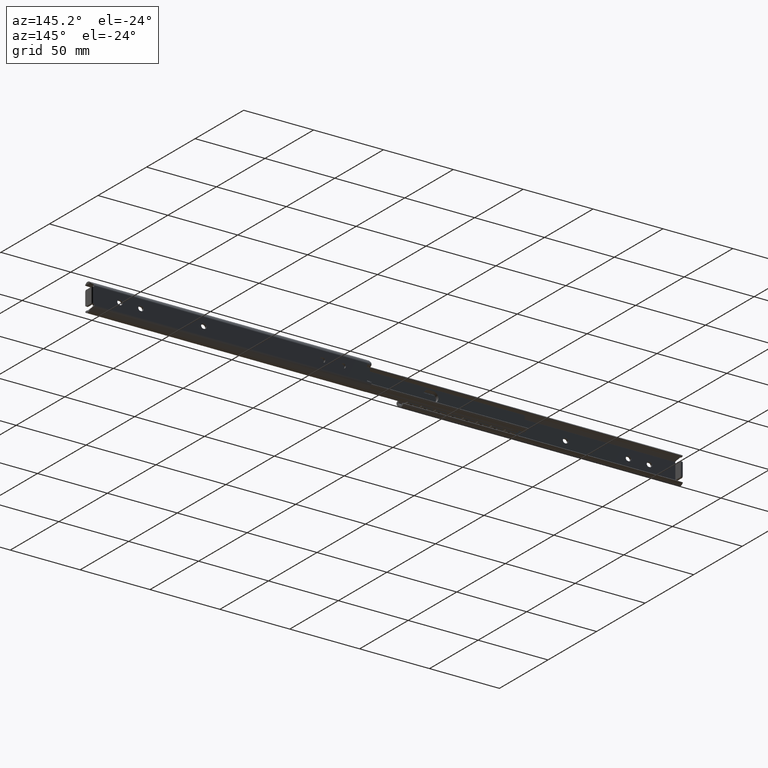
[diagram: clean part render]
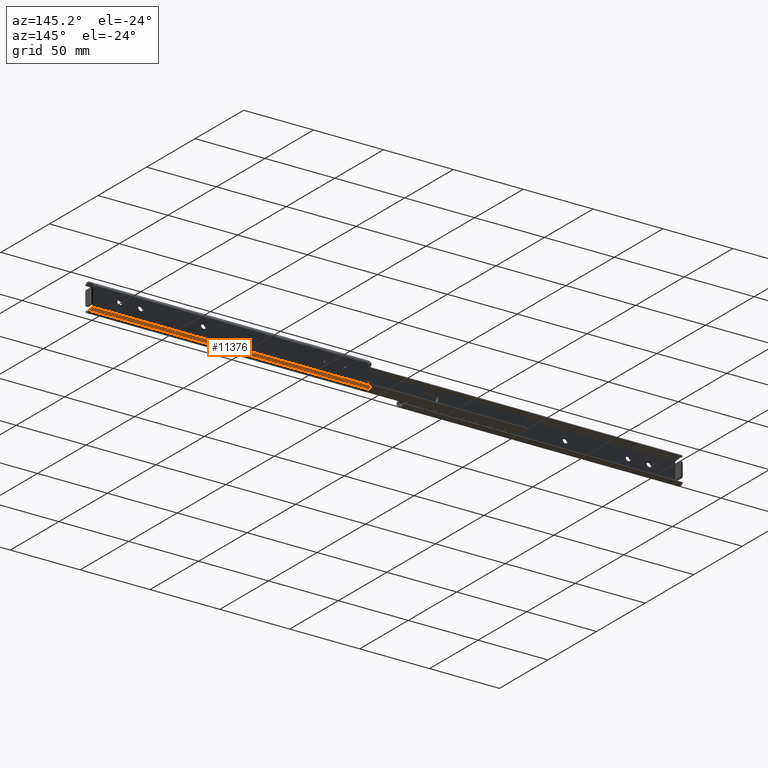
[diagram: same view with one face highlighted and labeled with its STEP entity id]
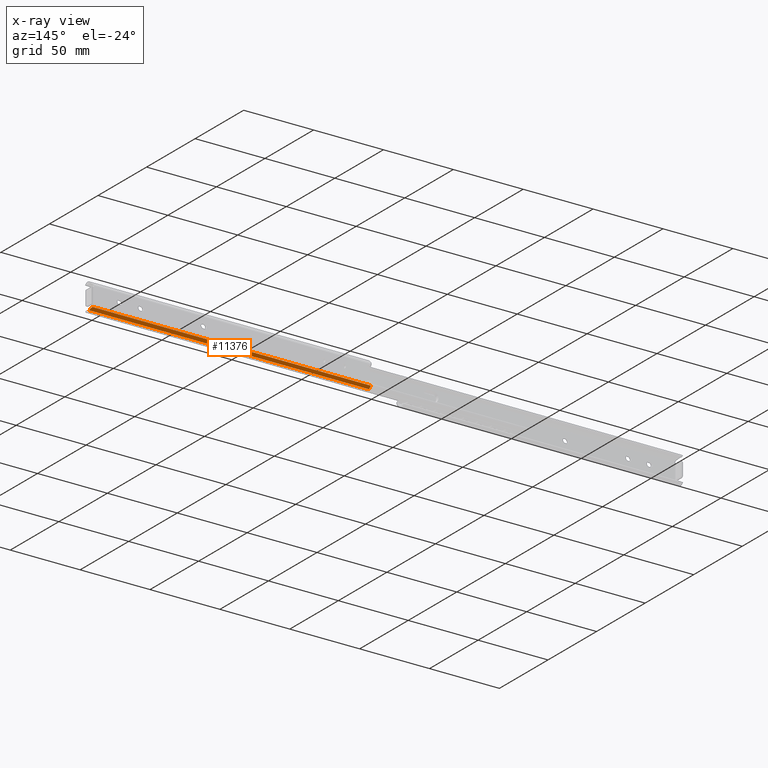
[diagram: x-ray of the same camera — body ghosted, the highlighted face saturated]
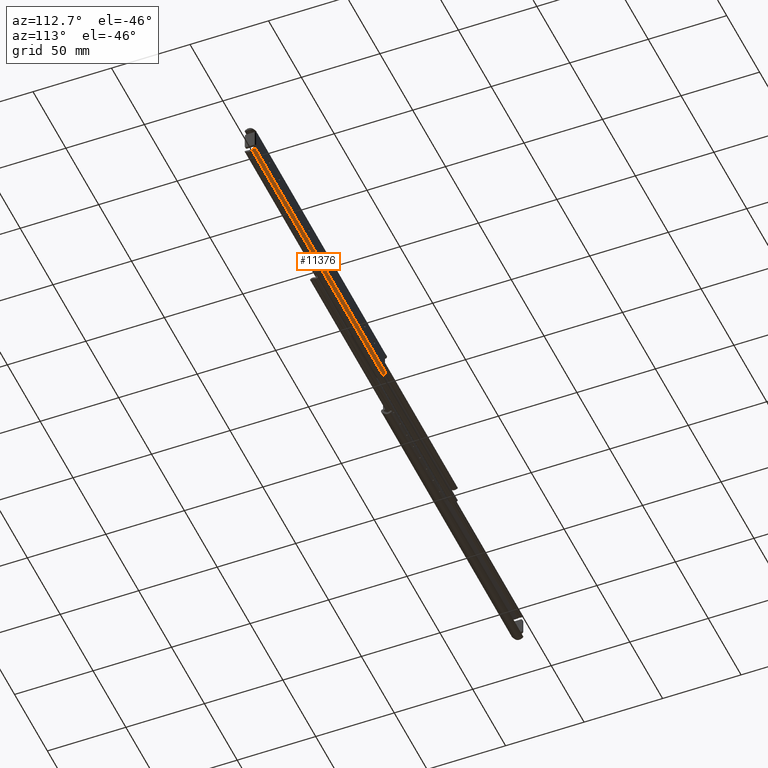
[diagram: same view with one face highlighted and labeled with its STEP entity id]
A machine part, auxiliary view. The second image highlights one B-rep face of the part: STEP entity #11376.
The next image is the same camera in x-ray: the body ghosted, the highlighted face saturated — about 0% of this face is hidden behind the body in this view.
A second angle (auxiliary view) of the same face is appended — the face is thin or edge-on in the first view.
In plain terms, the highlighted face is a freeform B-spline surface patch.
Its self-contained STEP definition (entity closure, byte-faithful):
#10018=CARTESIAN_POINT('',(199.707107000000010,-1.196151636337128,-8.021320000000090));
#10019=VERTEX_POINT('',#10018);
#10025=CARTESIAN_POINT('',(199.159981771921510,-0.607033335278284,-7.474195311379000));
#10026=VERTEX_POINT('',#10025);
#10027=CARTESIAN_POINT('',(199.707107000000010,-1.196151636337128,-8.021320000000090));
#10028=CARTESIAN_POINT('',(199.159981771921510,-0.607033335278284,-7.474195311379000));
#10029=QUASI_UNIFORM_CURVE('',1,(#10027,#10028),.UNSPECIFIED.,.F.,.U.);
#10030=EDGE_CURVE('',#10019,#10026,#10029,.T.);
#10266=CARTESIAN_POINT('',(200.0,-1.957531415335390,-8.728427000000210));
#10267=VERTEX_POINT('',#10266);
#10273=CARTESIAN_POINT('',(199.707107000000010,-1.196151636337128,-8.021320000000090));
#10274=CARTESIAN_POINT('',(200.000000000000060,-1.511525409746654,-8.314213256355970));
#10275=CARTESIAN_POINT('',(200.0,-1.957531415335390,-8.728427000000210));
#10283=(BOUNDED_CURVE()B_SPLINE_CURVE(2,(#10273,#10274,#10275),.UNSPECIFIED.,.F.,.U.)CURVE()GEOMETRIC_REPRESENTATION_ITEM()QUASI_UNIFORM_CURVE()RATIONAL_B_SPLINE_CURVE((1.0,0.923879473300739,1.0))REPRESENTATION_ITEM(''));
#10284=EDGE_CURVE('',#10019,#10267,#10283,.T.);
#10423=CARTESIAN_POINT('',(0.0,-0.607033335278490,-7.474194876987769));
#10424=VERTEX_POINT('',#10423);
#10438=CARTESIAN_POINT('',(0.0,-2.466980000000175,-9.201561000000000));
#10439=VERTEX_POINT('',#10438);
#10440=CARTESIAN_POINT('',(0.0,-0.607033335278490,-7.474194876987769));
#10441=CARTESIAN_POINT('',(0.0,-2.466980000000175,-9.201561000000000));
#10442=QUASI_UNIFORM_CURVE('',1,(#10440,#10441),.UNSPECIFIED.,.F.,.U.);
#10443=EDGE_CURVE('',#10424,#10439,#10442,.T.);
#11157=CARTESIAN_POINT('',(200.0,-2.466979999999921,-9.201561000000101));
#11158=VERTEX_POINT('',#11157);
#11174=CARTESIAN_POINT('',(200.0,-1.957531415335390,-8.728427000000210));
#11175=CARTESIAN_POINT('',(200.0,-2.466979999999921,-9.201561000000101));
#11176=QUASI_UNIFORM_CURVE('',1,(#11174,#11175),.UNSPECIFIED.,.F.,.U.);
#11177=EDGE_CURVE('',#10267,#11158,#11176,.T.);
#11355=CARTESIAN_POINT('',(-9.989999612361194,-2.559884319012346,-9.287842900460298));
#11356=CARTESIAN_POINT('',(-9.989999612361194,-0.514128866179889,-7.387913271531217));
#11357=CARTESIAN_POINT('',(209.990004976779200,-2.559884319012346,-9.287842900460298));
#11358=CARTESIAN_POINT('',(209.990004976779200,-0.514128866179889,-7.387913271531217));
#11359=B_SPLINE_SURFACE_WITH_KNOTS('',1,1,((#11355,#11357),(#11356,#11358)),.UNSPECIFIED.,.F.,.F.,.U.,(2,2),(2,2),(0.0,2.791925494649942),(0.0,219.980004589140410),.UNSPECIFIED.);
#11360=ORIENTED_EDGE('',*,*,#10030,.F.);
#11361=ORIENTED_EDGE('',*,*,#10284,.T.);
#11362=ORIENTED_EDGE('',*,*,#11177,.T.);
#11363=CARTESIAN_POINT('',(200.0,-2.466979999999921,-9.201561000000101));
#11364=CARTESIAN_POINT('',(0.0,-2.466980000000175,-9.201561000000000));
#11365=QUASI_UNIFORM_CURVE('',1,(#11363,#11364),.UNSPECIFIED.,.F.,.U.);
#11366=EDGE_CURVE('',#11158,#10439,#11365,.T.);
#11367=ORIENTED_EDGE('',*,*,#11366,.T.);
#11368=ORIENTED_EDGE('',*,*,#10443,.F.);
#11369=CARTESIAN_POINT('',(199.159981771921510,-0.607033335278284,-7.474195311379000));
#11370=CARTESIAN_POINT('',(0.0,-0.607033335278490,-7.474194876987769));
#11371=QUASI_UNIFORM_CURVE('',1,(#11369,#11370),.UNSPECIFIED.,.F.,.U.);
#11372=EDGE_CURVE('',#10026,#10424,#11371,.T.);
#11373=ORIENTED_EDGE('',*,*,#11372,.F.);
#11374=EDGE_LOOP('',(#11360,#11361,#11362,#11367,#11368,#11373));
#11375=FACE_OUTER_BOUND('',#11374,.T.);
#11376=ADVANCED_FACE('',(#11375),#11359,.T.);